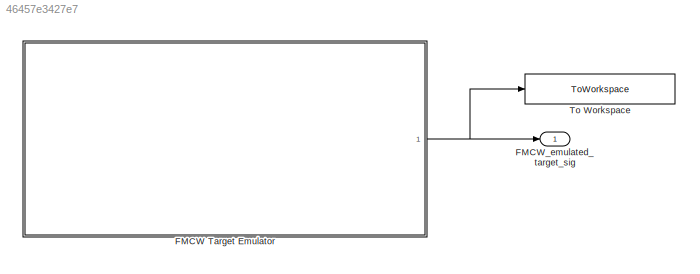
MODEL slx_46457e3427e7
KIND model
CONFIG AbsTol = auto
CONFIG EnableMultiTasking = off
CONFIG FixedStep = auto
CONFIG MaxStep = auto
CONFIG MinStep = auto
CONFIG RelTol = 1e-3
CONFIG SampleTimeConstraint = Unconstrained
CONFIG SolverName = VariableStepAuto
CONFIG StartTime = 0.0
CONFIG StopTime = stop_time
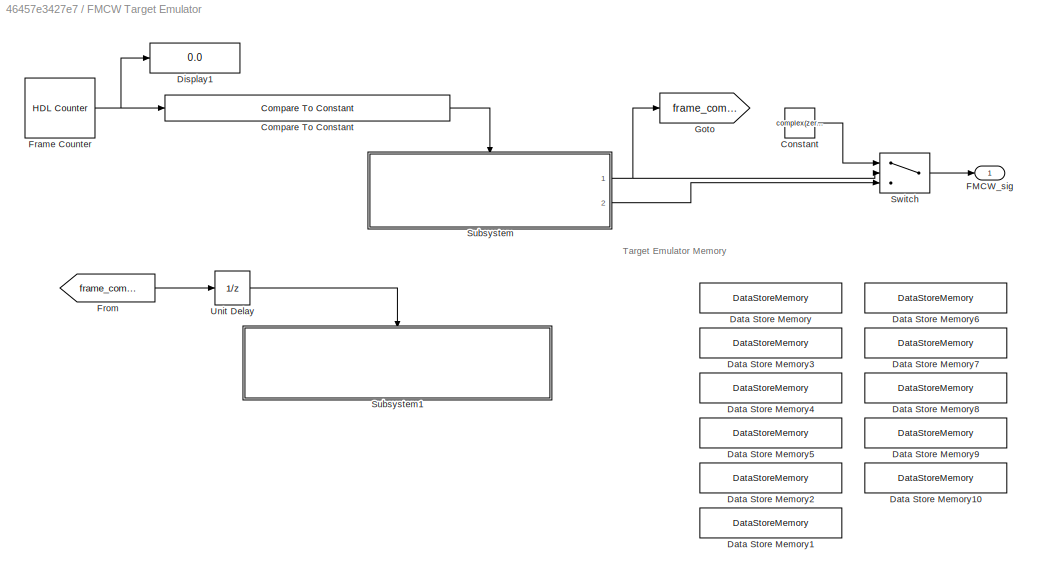
BLOCK [SubSystem] FMCW Target Emulator
  Ports = [0, 1]
  RequestExecContextInheritance = off
BLOCK [Reference] FMCW Target Emulator/Compare To Constant  REF=simulink/Logic and Bit
Operations/Compare
To Constant
  Ports = [1, 1]
  SourceBlock = simulink/Logic and Bit\nOperations/Compare\nTo Constant
  SourceProductBaseCode = SL
  SourceType = Compare To Constant
BLOCK [Constant] FMCW Target Emulator/Constant
  Value = complex(zeros(size(simulator.Victim.chirp)))
  VectorParams1D = off
BLOCK [DataStoreMemory] FMCW Target Emulator/Data Store Memory
  DataStoreName = emulated_chirps
  Dimensions = size(emulated_target.emulated_chirps)
  InitialValue = emulated_target.emulated_chirps
  OutDataTypeStr = double
  ReadBeforeWriteMsg = warning
  ShowAdditionalParam = off
  SignalType = complex
  VectorParams1D = off
  WriteAfterReadMsg = warning
  WriteAfterWriteMsg = warning
BLOCK [DataStoreMemory] FMCW Target Emulator/Data Store Memory1
  DataStoreName = desired_range_m
  InitialValue = emulated_target.desired_range_m
  OutDataTypeStr = double
  ReadBeforeWriteMsg = warning
  ShowAdditionalParam = off
  SignalType = real
  WriteAfterReadMsg = warning
  WriteAfterWriteMsg = warning
BLOCK [DataStoreMemory] FMCW Target Emulator/Data Store Memory10
  DataStoreName = num_samples_idle_time
  InitialValue = emulated_target.Radar.num_samples_idle_time
  OutDataTypeStr = double
  ReadBeforeWriteMsg = warning
  ShowAdditionalParam = off
  SignalType = real
  WriteAfterReadMsg = warning
  WriteAfterWriteMsg = warning
BLOCK [DataStoreMemory] FMCW Target Emulator/Data Store Memory2
  DataStoreName = desired_velocity_m_s
  InitialValue = emulated_target.desired_velocity_m_s
  OutDataTypeStr = double
  ReadBeforeWriteMsg = warning
  ShowAdditionalParam = off
  SignalType = real
  WriteAfterReadMsg = warning
  WriteAfterWriteMsg = warning
BLOCK [DataStoreMemory] FMCW Target Emulator/Data Store Memory3
  DataStoreName = phase_shift_per_chirp
  InitialValue = emulated_target.phase_shift_per_chirp
  OutDataTypeStr = double
  ReadBeforeWriteMsg = warning
  ShowAdditionalParam = off
  SignalType = real
  WriteAfterReadMsg = warning
  WriteAfterWriteMsg = warning
BLOCK [DataStoreMemory] FMCW Target Emulator/Data Store Memory4
  DataStoreName = t
  Dimensions = size(emulated_target.t)
  InitialValue = emulated_target.t
  OutDataTypeStr = double
  ReadBeforeWriteMsg = warning
  ShowAdditionalParam = off
  SignalType = real
  WriteAfterReadMsg = warning
  WriteAfterWriteMsg = warning
BLOCK [DataStoreMemory] FMCW Target Emulator/Data Store Memory5
  DataStoreName = frame
  InitialValue = 1
  OutDataTypeStr = double
  ReadBeforeWriteMsg = warning
  ShowAdditionalParam = off
  SignalType = real
  WriteAfterReadMsg = warning
  WriteAfterWriteMsg = warning
BLOCK [DataStoreMemory] FMCW Target Emulator/Data Store Memory6
  DataStoreName = FramePeriodicity_ms
  InitialValue = emulated_target.Radar.FramePeriodicity_ms
  OutDataTypeStr = double
  ReadBeforeWriteMsg = warning
  ShowAdditionalParam = off
  SignalType = real
  WriteAfterReadMsg = warning
  WriteAfterWriteMsg = warning
BLOCK [DataStoreMemory] FMCW Target Emulator/Data Store Memory7
  DataStoreName = FrequencySlope_MHz_us
  InitialValue = emulated_target.Radar.FrequencySlope_MHz_us
  OutDataTypeStr = double
  ReadBeforeWriteMsg = warning
  ShowAdditionalParam = off
  SignalType = real
  WriteAfterReadMsg = warning
  WriteAfterWriteMsg = warning
BLOCK [DataStoreMemory] FMCW Target Emulator/Data Store Memory8
  DataStoreName = NumChirps
  InitialValue = emulated_target.Radar.NumChirps
  OutDataTypeStr = int32
  ReadBeforeWriteMsg = warning
  ShowAdditionalParam = off
  SignalType = real
  WriteAfterReadMsg = warning
  WriteAfterWriteMsg = warning
BLOCK [DataStoreMemory] FMCW Target Emulator/Data Store Memory9
  DataStoreName = FMCW_sampling_period_s
  InitialValue = emulated_target.Radar.FMCW_sampling_period_s
  OutDataTypeStr = double
  ReadBeforeWriteMsg = warning
  ShowAdditionalParam = off
  SignalType = real
  WriteAfterReadMsg = warning
  WriteAfterWriteMsg = warning
BLOCK [Display] FMCW Target Emulator/Display1
  Decimation = 1
  Ports = [1]
BLOCK [Outport] FMCW Target Emulator/FMCW_sig
BLOCK [Reference] FMCW Target Emulator/Frame Counter  REF=hdlsllib/Sources/HDL Counter
  Ports = [0, 1]
  SourceBlock = hdlsllib/Sources/HDL Counter
  SourceProductBaseCode = SL
  SourceType = HDL Counter
BLOCK [From] FMCW Target Emulator/From
  GotoTag = frame_complete
BLOCK [Goto] FMCW Target Emulator/Goto
  GotoTag = frame_complete
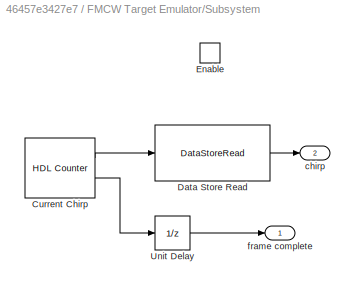
BLOCK [SubSystem] FMCW Target Emulator/Subsystem
  Ports = [0, 2, 1]
  RequestExecContextInheritance = off
BLOCK [Reference] FMCW Target Emulator/Subsystem/Current Chirp  REF=hdlsllib/Sources/HDL Counter
  Ports = [0, 2]
  SourceBlock = hdlsllib/Sources/HDL Counter
  SourceProductBaseCode = SL
  SourceType = HDL Counter
BLOCK [DataStoreRead] FMCW Target Emulator/Subsystem/Data Store Read
  DataStoreElements = emulated_chirps
  DataStoreName = emulated_chirps
  EnableIndexing = on
  IndexOptions = Select all,Index vector (port)
  Indices = 1,1
  NumberOfDimensions = 2
  OutputSizes = 1,1
  Ports = [1, 1]
BLOCK [EnablePort] FMCW Target Emulator/Subsystem/Enable
  Ports = []
  StatesWhenEnabling = reset
BLOCK [UnitDelay] FMCW Target Emulator/Subsystem/Unit Delay
  HasFrameUpgradeWarning = on
  SampleTime = -1
BLOCK [Outport] FMCW Target Emulator/Subsystem/chirp
  InitialOutput = complex(zeros(size(emulated_target.emulated_chirps(:,1))))
  OutputWhenDisabled = reset
  Port = 2
BLOCK [Outport] FMCW Target Emulator/Subsystem/frame complete
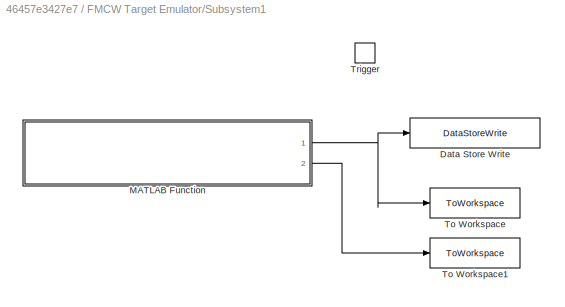
BLOCK [SubSystem] FMCW Target Emulator/Subsystem1
  Ports = [0, 0, 0, 1]
  RequestExecContextInheritance = off
BLOCK [DataStoreWrite] FMCW Target Emulator/Subsystem1/Data Store Write
  DataStoreName = emulated_chirps
  IndexOptions = Index vector (dialog)
  Indices = 1
  OutputSizes = 1
  Ports = [1]
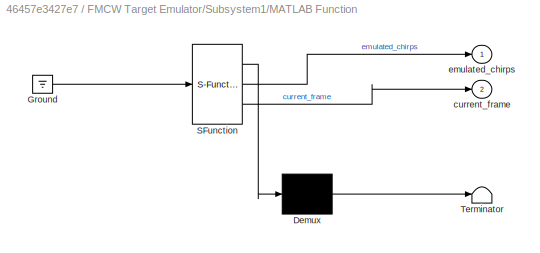
BLOCK [SubSystem] FMCW Target Emulator/Subsystem1/MATLAB Function
  ErrorFcn = Stateflow.Translate.translate
  PermitHierarchicalResolution = ExplicitOnly
  Ports = [0, 2]
  RequestExecContextInheritance = off
  SFBlockType = MATLAB Function
  TreatAsAtomicUnit = on
BLOCK [Demux] FMCW Target Emulator/Subsystem1/MATLAB Function/ Demux 
  Outputs = 1
  Ports = [1, 1]
BLOCK [Ground] FMCW Target Emulator/Subsystem1/MATLAB Function/ Ground 
BLOCK [S-Function] FMCW Target Emulator/Subsystem1/MATLAB Function/ SFunction 
  EnableBusSupport = on
  FunctionName = sf_sfun
  Parameters = emulated_chirps_size
  PortCounts = [1 3]
  Ports = [1, 3]
  SFcnIsStateOwnerBlock = off
  SFunctionDeploymentMode = off
  Tag = Stateflow S-Function 2
BLOCK [Terminator] FMCW Target Emulator/Subsystem1/MATLAB Function/ Terminator 
BLOCK [Outport] FMCW Target Emulator/Subsystem1/MATLAB Function/current_frame
  Port = 2
BLOCK [Outport] FMCW Target Emulator/Subsystem1/MATLAB Function/emulated_chirps
BLOCK [ToWorkspace] FMCW Target Emulator/Subsystem1/To Workspace
  FixptAsFi = on
  MaxDataPoints = 2
  Ports = [1]
  SampleTime = -1
  VariableName = emulated_chirps
BLOCK [ToWorkspace] FMCW Target Emulator/Subsystem1/To Workspace1
  FixptAsFi = on
  MaxDataPoints = 2
  Ports = [1]
  SampleTime = -1
  VariableName = current_frame
BLOCK [TriggerPort] FMCW Target Emulator/Subsystem1/Trigger
  PortDimensions = 1
  Ports = []
  StatesWhenEnabling = held
  VariantControl = (inherit)
BLOCK [Switch] FMCW Target Emulator/Switch
  Criteria = u2 ~= 0
  InputSameDT = off
  SaturateOnIntegerOverflow = off
BLOCK [UnitDelay] FMCW Target Emulator/Unit Delay
  HasFrameUpgradeWarning = on
  SampleTime = -1
BLOCK [Outport] FMCW_emulated_target_sig
BLOCK [ToWorkspace] To Workspace
  FixptAsFi = on
  MaxDataPoints = 2
  Ports = [1]
  SampleTime = -1
  VariableName = FMCW_emulated_target_sig
ANNOTATION FMCW Target Emulator: Target Emulator Memory
LINE FMCW Target Emulator/Compare To Constant:1 -> FMCW Target Emulator/Subsystem:enable
LINE FMCW Target Emulator/Constant:1 -> FMCW Target Emulator/Switch:1
NET FMCW Target Emulator/Frame Counter:1 -> FMCW Target Emulator/Compare To Constant:1, FMCW Target Emulator/Display1:1
LINE FMCW Target Emulator/From:1 -> FMCW Target Emulator/Unit Delay:1
LINE FMCW Target Emulator/Subsystem/Current Chirp:1 -> FMCW Target Emulator/Subsystem/Data Store Read:1
LINE FMCW Target Emulator/Subsystem/Current Chirp:2 -> FMCW Target Emulator/Subsystem/Unit Delay:1
LINE FMCW Target Emulator/Subsystem/Data Store Read:1 -> FMCW Target Emulator/Subsystem/chirp:1
LINE FMCW Target Emulator/Subsystem/Unit Delay:1 -> FMCW Target Emulator/Subsystem/frame complete:1
NET FMCW Target Emulator/Subsystem1/MATLAB Function:1 -> FMCW Target Emulator/Subsystem1/Data Store Write:1, FMCW Target Emulator/Subsystem1/To Workspace:1
LINE FMCW Target Emulator/Subsystem1/MATLAB Function:2 -> FMCW Target Emulator/Subsystem1/To Workspace1:1
NET FMCW Target Emulator/Subsystem:1 -> FMCW Target Emulator/Goto:1, FMCW Target Emulator/Switch:2
LINE FMCW Target Emulator/Subsystem:2 -> FMCW Target Emulator/Switch:3
LINE FMCW Target Emulator/Switch:1 -> FMCW Target Emulator/FMCW_sig:1
LINE FMCW Target Emulator/Unit Delay:1 -> FMCW Target Emulator/Subsystem1:trigger
NET FMCW Target Emulator:1 -> FMCW_emulated_target_sig:1, To Workspace:1
note: NET lines group one-source signal fan-out (src -> all destinations, sorted); 1:1 wires keep LINE
CHART FMCW Target Emulator/Subsystem1/MATLAB Function states=1 transitions=1
  STATE_LABEL 'eML_blk_kernel()'
  STATE_LABEL 'SCRIPT:\nfunction [emulated_chirps,current_frame] = compute_next_emulated_chirps(emulated_chirps_size)\n    \n    global phase_shift_per_chirp\n    global t\n\n    global desired_range_m\n    global desired_velocity_m_s\n\n    global frame\n\n    %the following variables provide necessary information on the radar to\n    %implement\n    global FramePeriodicity_ms\n    global FrequencySlope_MHz_us\n    global Num...<+1488ch>'
CHART  states=0 transitions=0
